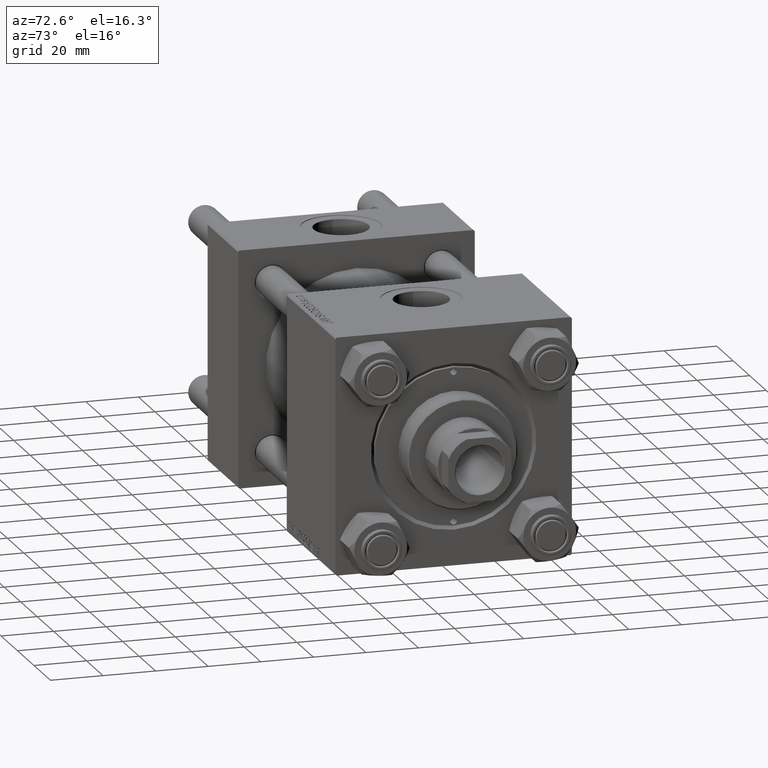
[diagram: clean part render]
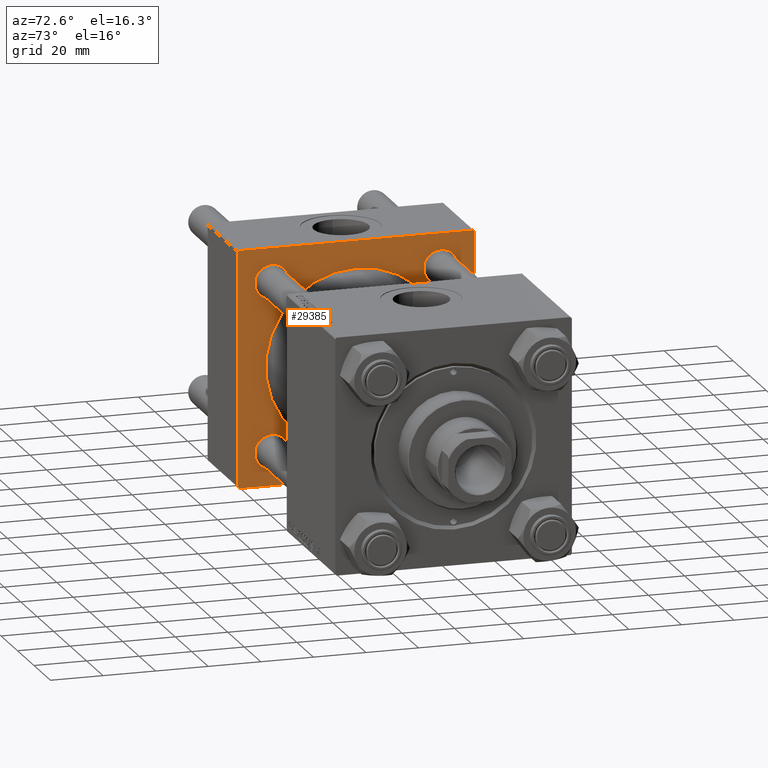
[diagram: same view with one face highlighted and labeled with its STEP entity id]
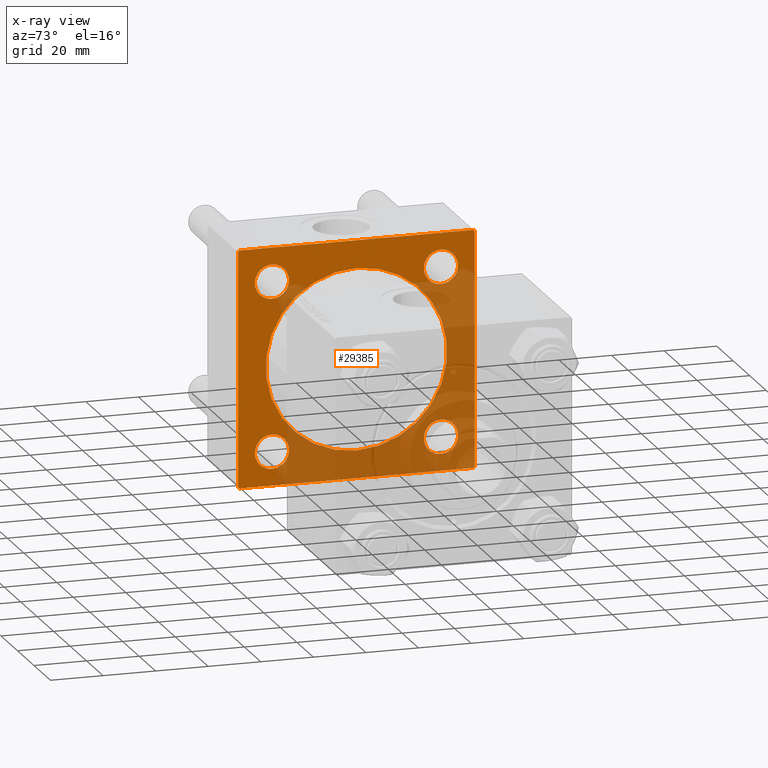
[diagram: x-ray of the same camera — body ghosted, the highlighted face saturated]
A machine part, auxiliary view. The second image highlights one B-rep face of the part: STEP entity #29385.
The next image is the same camera in x-ray: the body ghosted, the highlighted face saturated — about 47% of this face is hidden behind the body in this view.
In plain terms, the highlighted planar face has unit normal (-1, 0, 0).
Its self-contained STEP definition (entity closure, byte-faithful):
#422 = VECTOR ( 'NONE', #46878, 1000.000000000000000 ) ;
#897 = ORIENTED_EDGE ( 'NONE', *, *, #25394, .T. ) ;
#1476 = CARTESIAN_POINT ( 'NONE',  ( 37.00000000000000000, -45.00000000000000711, 44.49999999999997158 ) ) ;
#1557 = ORIENTED_EDGE ( 'NONE', *, *, #46327, .T. ) ;
#1835 = AXIS2_PLACEMENT_3D ( 'NONE', #48062, #4875, #44268 ) ;
#1970 = EDGE_CURVE ( 'NONE', #4966, #43751, #10535, .T. ) ;
#2127 = EDGE_LOOP ( 'NONE', ( #41111, #897 ) ) ;
#2216 = DIRECTION ( 'NONE',  ( -1.000000000000000000, 0.000000000000000000, -0.000000000000000000 ) ) ;
#2766 = DIRECTION ( 'NONE',  ( -1.000000000000000000, 0.000000000000000000, -0.000000000000000000 ) ) ;
#2887 = VERTEX_POINT ( 'NONE', #42155 ) ;
#3223 = CIRCLE ( 'NONE', #31436, 6.500000000000033751 ) ;
#3300 = DIRECTION ( 'NONE',  ( -0.000000000000000000, 0.000000000000000000, 1.000000000000000000 ) ) ;
#3679 = ORIENTED_EDGE ( 'NONE', *, *, #23165, .F. ) ;
#3782 = VERTEX_POINT ( 'NONE', #39985 ) ;
#3800 = FACE_BOUND ( 'NONE', #10793, .T. ) ;
#4143 = DIRECTION ( 'NONE',  ( 0.000000000000000000, 0.000000000000000000, 1.000000000000000000 ) ) ;
#4311 = LINE ( 'NONE', #19693, #8739 ) ;
#4875 = DIRECTION ( 'NONE',  ( 1.000000000000000000, -0.000000000000000000, 0.000000000000000000 ) ) ;
#4966 = VERTEX_POINT ( 'NONE', #43728 ) ;
#5247 = CARTESIAN_POINT ( 'NONE',  ( 37.00000000000000000, -32.14999999999997726, -25.64999999999997726 ) ) ;
#5587 = ORIENTED_EDGE ( 'NONE', *, *, #16647, .T. ) ;
#6254 = EDGE_LOOP ( 'NONE', ( #41435, #32287 ) ) ;
#6952 = ORIENTED_EDGE ( 'NONE', *, *, #7413, .F. ) ;
#7203 = ORIENTED_EDGE ( 'NONE', *, *, #42171, .T. ) ;
#7222 = CARTESIAN_POINT ( 'NONE',  ( 37.00000000000000000, -45.00000000000000000, -44.49999999999995737 ) ) ;
#7413 = EDGE_CURVE ( 'NONE', #31977, #35512, #9188, .T. ) ;
#7420 = CIRCLE ( 'NONE', #47779, 6.500000000000033751 ) ;
#7752 = VECTOR ( 'NONE', #29546, 1000.000000000000000 ) ;
#8088 = VECTOR ( 'NONE', #25260, 1000.000000000000114 ) ;
#8252 = CIRCLE ( 'NONE', #31673, 34.49999999999999289 ) ;
#8739 = VECTOR ( 'NONE', #35109, 1000.000000000000114 ) ;
#8982 = VECTOR ( 'NONE', #15773, 1000.000000000000000 ) ;
#9188 = LINE ( 'NONE', #19800, #8982 ) ;
#9216 = LINE ( 'NONE', #43086, #422 ) ;
#9425 = VERTEX_POINT ( 'NONE', #7222 ) ;
#9760 = CARTESIAN_POINT ( 'NONE',  ( 37.00000000000000000, -32.14999999999997726, 32.15000000000001279 ) ) ;
#10233 = AXIS2_PLACEMENT_3D ( 'NONE', #9760, #2216, #41833 ) ;
#10403 = VERTEX_POINT ( 'NONE', #5247 ) ;
#10535 = CIRCLE ( 'NONE', #33914, 6.500000000000033751 ) ;
#10793 = EDGE_LOOP ( 'NONE', ( #46102, #30142 ) ) ;
#10845 = LINE ( 'NONE', #17914, #8088 ) ;
#11005 = EDGE_CURVE ( 'NONE', #23399, #2887, #8252, .T. ) ;
#11031 = EDGE_CURVE ( 'NONE', #2887, #23399, #47834, .T. ) ;
#12097 = FACE_BOUND ( 'NONE', #44474, .T. ) ;
#12828 = VECTOR ( 'NONE', #35819, 1000.000000000000114 ) ;
#13317 = LINE ( 'NONE', #25187, #28952 ) ;
#14209 = CIRCLE ( 'NONE', #39231, 6.500000000000033751 ) ;
#14334 = DIRECTION ( 'NONE',  ( 0.000000000000000000, 0.000000000000000000, 1.000000000000000000 ) ) ;
#14699 = VECTOR ( 'NONE', #24134, 1000.000000000000000 ) ;
#14982 = ORIENTED_EDGE ( 'NONE', *, *, #35523, .T. ) ;
#15266 = VERTEX_POINT ( 'NONE', #37051 ) ;
#15773 = DIRECTION ( 'NONE',  ( 0.000000000000000000, 0.000000000000000000, -1.000000000000000000 ) ) ;
#15876 = VERTEX_POINT ( 'NONE', #27346 ) ;
#16133 = CIRCLE ( 'NONE', #44387, 6.500000000000033751 ) ;
#16485 = DIRECTION ( 'NONE',  ( -1.000000000000000000, 0.000000000000000000, -0.000000000000000000 ) ) ;
#16647 = EDGE_CURVE ( 'NONE', #23045, #9425, #9216, .T. ) ;
#17829 = DIRECTION ( 'NONE',  ( 0.000000000000000000, 0.000000000000000000, 1.000000000000000000 ) ) ;
#17914 = CARTESIAN_POINT ( 'NONE',  ( 37.00000000000000000, -44.49999999999998579, -45.00000000000000000 ) ) ;
#18800 = CARTESIAN_POINT ( 'NONE',  ( 37.00000000000000000, 32.14999999999999147, 32.15000000000000568 ) ) ;
#19419 = FACE_BOUND ( 'NONE', #6254, .T. ) ;
#19693 = CARTESIAN_POINT ( 'NONE',  ( 37.00000000000000000, 44.49999999999998579, 45.00000000000001421 ) ) ;
#19800 = CARTESIAN_POINT ( 'NONE',  ( 37.00000000000000000, 44.99999999999998579, 45.00000000000001421 ) ) ;
#21895 = CARTESIAN_POINT ( 'NONE',  ( 37.00000000000000000, 44.99999999999998579, -44.49999999999995737 ) ) ;
#22156 = DIRECTION ( 'NONE',  ( -1.000000000000000000, 0.000000000000000000, -0.000000000000000000 ) ) ;
#22484 = FACE_BOUND ( 'NONE', #2127, .T. ) ;
#22691 = VERTEX_POINT ( 'NONE', #23085 ) ;
#22822 = EDGE_CURVE ( 'NONE', #39362, #33187, #14209, .T. ) ;
#23045 = VERTEX_POINT ( 'NONE', #28296 ) ;
#23085 = CARTESIAN_POINT ( 'NONE',  ( 37.00000000000000000, -44.49999999999995737, -45.00000000000000000 ) ) ;
#23165 = EDGE_CURVE ( 'NONE', #3782, #22691, #36374, .T. ) ;
#23326 = CARTESIAN_POINT ( 'NONE',  ( 37.00000000000000000, 0.000000000000000000, 0.000000000000000000 ) ) ;
#23399 = VERTEX_POINT ( 'NONE', #27243 ) ;
#23573 = DIRECTION ( 'NONE',  ( 0.000000000000000000, 0.000000000000000000, 1.000000000000000000 ) ) ;
#24134 = DIRECTION ( 'NONE',  ( 0.000000000000000000, -1.000000000000000000, -1.541976423090495387E-16 ) ) ;
#24574 = CARTESIAN_POINT ( 'NONE',  ( 37.00000000000000000, -32.14999999999997726, -32.15000000000001279 ) ) ;
#24740 = CIRCLE ( 'NONE', #32031, 6.500000000000033751 ) ;
#25066 = DIRECTION ( 'NONE',  ( 0.000000000000000000, 0.000000000000000000, 1.000000000000000000 ) ) ;
#25187 = CARTESIAN_POINT ( 'NONE',  ( 37.00000000000000000, 44.99999999999998579, -44.49999999999998579 ) ) ;
#25260 = DIRECTION ( 'NONE',  ( 0.000000000000000000, 0.7071067811865474617, -0.7071067811865474617 ) ) ;
#25394 = EDGE_CURVE ( 'NONE', #43751, #4966, #32030, .T. ) ;
#25501 = EDGE_CURVE ( 'NONE', #33187, #39362, #27195, .T. ) ;
#25642 = DIRECTION ( 'NONE',  ( 0.000000000000000000, 0.000000000000000000, 1.000000000000000000 ) ) ;
#25693 = EDGE_LOOP ( 'NONE', ( #3679, #14982, #6952, #36230, #1557, #37469, #5587, #7203 ) ) ;
#26833 = CARTESIAN_POINT ( 'NONE',  ( 37.00000000000000000, -44.49999999999995737, 45.00000000000000000 ) ) ;
#27195 = CIRCLE ( 'NONE', #31919, 6.500000000000033751 ) ;
#27243 = CARTESIAN_POINT ( 'NONE',  ( 37.00000000000000000, 0.000000000000000000, 34.49999999999999289 ) ) ;
#27346 = CARTESIAN_POINT ( 'NONE',  ( 37.00000000000000000, 32.14999999999999147, 38.65000000000004121 ) ) ;
#27549 = CARTESIAN_POINT ( 'NONE',  ( 37.00000000000000000, 32.14999999999999147, -25.64999999999997016 ) ) ;
#28296 = CARTESIAN_POINT ( 'NONE',  ( 37.00000000000000000, -45.00000000000000711, 44.49999999999997158 ) ) ;
#28927 = LINE ( 'NONE', #40540, #14699 ) ;
#28952 = VECTOR ( 'NONE', #37054, 1000.000000000000114 ) ;
#29385 = ADVANCED_FACE ( 'NONE', ( #19419, #12097, #22484, #3800, #49518, #49767 ), #37888, .F. ) ;
#29546 = DIRECTION ( 'NONE',  ( 0.000000000000000000, -1.000000000000000000, -1.541976423090495633E-16 ) ) ;
#29563 = EDGE_CURVE ( 'NONE', #15876, #15266, #24740, .T. ) ;
#29968 = DIRECTION ( 'NONE',  ( -1.000000000000000000, 0.000000000000000000, -0.000000000000000000 ) ) ;
#30142 = ORIENTED_EDGE ( 'NONE', *, *, #29563, .T. ) ;
#31390 = CARTESIAN_POINT ( 'NONE',  ( 37.00000000000000000, 32.14999999999999147, -38.65000000000004121 ) ) ;
#31436 = AXIS2_PLACEMENT_3D ( 'NONE', #45901, #22156, #42105 ) ;
#31673 = AXIS2_PLACEMENT_3D ( 'NONE', #23326, #38733, #4143 ) ;
#31720 = VERTEX_POINT ( 'NONE', #26833 ) ;
#31919 = AXIS2_PLACEMENT_3D ( 'NONE', #37049, #29968, #17829 ) ;
#31941 = EDGE_LOOP ( 'NONE', ( #46035, #39108 ) ) ;
#31977 = VERTEX_POINT ( 'NONE', #32375 ) ;
#32030 = CIRCLE ( 'NONE', #10233, 6.500000000000033751 ) ;
#32031 = AXIS2_PLACEMENT_3D ( 'NONE', #40622, #48210, #14334 ) ;
#32287 = ORIENTED_EDGE ( 'NONE', *, *, #42785, .T. ) ;
#32375 = CARTESIAN_POINT ( 'NONE',  ( 37.00000000000000000, 44.99999999999998579, 44.50000000000001421 ) ) ;
#32530 = LINE ( 'NONE', #1476, #12828 ) ;
#32591 = CARTESIAN_POINT ( 'NONE',  ( 37.00000000000000000, 44.99999999999998579, -44.99999999999998579 ) ) ;
#32840 = CARTESIAN_POINT ( 'NONE',  ( 37.00000000000000000, 44.49999999999998579, 45.00000000000001421 ) ) ;
#33187 = VERTEX_POINT ( 'NONE', #31390 ) ;
#33323 = CARTESIAN_POINT ( 'NONE',  ( 37.00000000000000000, -32.14999999999997726, 32.15000000000001279 ) ) ;
#33914 = AXIS2_PLACEMENT_3D ( 'NONE', #33323, #2766, #40638 ) ;
#35109 = DIRECTION ( 'NONE',  ( 0.000000000000000000, -0.7071067811865474617, 0.7071067811865474617 ) ) ;
#35512 = VERTEX_POINT ( 'NONE', #21895 ) ;
#35523 = EDGE_CURVE ( 'NONE', #3782, #35512, #13317, .T. ) ;
#35819 = DIRECTION ( 'NONE',  ( -0.000000000000000000, -0.7071067811865425767, -0.7071067811865524577 ) ) ;
#36230 = ORIENTED_EDGE ( 'NONE', *, *, #37933, .T. ) ;
#36374 = LINE ( 'NONE', #32591, #7752 ) ;
#36439 = CARTESIAN_POINT ( 'NONE',  ( 37.00000000000000000, 32.14999999999999147, -32.15000000000000568 ) ) ;
#37049 = CARTESIAN_POINT ( 'NONE',  ( 37.00000000000000000, 32.14999999999999147, -32.15000000000000568 ) ) ;
#37051 = CARTESIAN_POINT ( 'NONE',  ( 37.00000000000000000, 32.14999999999999147, 25.64999999999997016 ) ) ;
#37054 = DIRECTION ( 'NONE',  ( -0.000000000000000000, 0.7071067811865474617, 0.7071067811865474617 ) ) ;
#37469 = ORIENTED_EDGE ( 'NONE', *, *, #38831, .T. ) ;
#37812 = CARTESIAN_POINT ( 'NONE',  ( 37.00000000000000000, -32.14999999999997726, -38.65000000000004832 ) ) ;
#37888 = PLANE ( 'NONE',  #40059 ) ;
#37933 = EDGE_CURVE ( 'NONE', #31977, #39497, #4311, .T. ) ;
#38733 = DIRECTION ( 'NONE',  ( 1.000000000000000000, -0.000000000000000000, 0.000000000000000000 ) ) ;
#38831 = EDGE_CURVE ( 'NONE', #31720, #23045, #32530, .T. ) ;
#39108 = ORIENTED_EDGE ( 'NONE', *, *, #11031, .F. ) ;
#39231 = AXIS2_PLACEMENT_3D ( 'NONE', #36439, #49062, #25066 ) ;
#39362 = VERTEX_POINT ( 'NONE', #27549 ) ;
#39497 = VERTEX_POINT ( 'NONE', #32840 ) ;
#39985 = CARTESIAN_POINT ( 'NONE',  ( 37.00000000000000000, 44.49999999999998579, -44.99999999999998579 ) ) ;
#40059 = AXIS2_PLACEMENT_3D ( 'NONE', #45976, #45733, #3300 ) ;
#40540 = CARTESIAN_POINT ( 'NONE',  ( 37.00000000000000000, 44.99999999999998579, 45.00000000000001421 ) ) ;
#40622 = CARTESIAN_POINT ( 'NONE',  ( 37.00000000000000000, 32.14999999999999147, 32.15000000000000568 ) ) ;
#40638 = DIRECTION ( 'NONE',  ( 0.000000000000000000, 0.000000000000000000, 1.000000000000000000 ) ) ;
#41111 = ORIENTED_EDGE ( 'NONE', *, *, #1970, .T. ) ;
#41435 = ORIENTED_EDGE ( 'NONE', *, *, #41635, .T. ) ;
#41635 = EDGE_CURVE ( 'NONE', #46900, #10403, #3223, .T. ) ;
#41797 = DIRECTION ( 'NONE',  ( -1.000000000000000000, 0.000000000000000000, -0.000000000000000000 ) ) ;
#41833 = DIRECTION ( 'NONE',  ( 0.000000000000000000, 0.000000000000000000, 1.000000000000000000 ) ) ;
#42105 = DIRECTION ( 'NONE',  ( 0.000000000000000000, 0.000000000000000000, 1.000000000000000000 ) ) ;
#42155 = CARTESIAN_POINT ( 'NONE',  ( 37.00000000000000000, 4.225031457058367344E-15, -34.49999999999999289 ) ) ;
#42171 = EDGE_CURVE ( 'NONE', #9425, #22691, #10845, .T. ) ;
#42611 = ORIENTED_EDGE ( 'NONE', *, *, #25501, .T. ) ;
#42785 = EDGE_CURVE ( 'NONE', #10403, #46900, #16133, .T. ) ;
#43086 = CARTESIAN_POINT ( 'NONE',  ( 37.00000000000000000, -45.00000000000000711, 45.00000000000000000 ) ) ;
#43728 = CARTESIAN_POINT ( 'NONE',  ( 37.00000000000000000, -32.14999999999997726, 25.64999999999997726 ) ) ;
#43751 = VERTEX_POINT ( 'NONE', #47148 ) ;
#44268 = DIRECTION ( 'NONE',  ( 0.000000000000000000, 0.000000000000000000, 1.000000000000000000 ) ) ;
#44387 = AXIS2_PLACEMENT_3D ( 'NONE', #24574, #16485, #23573 ) ;
#44474 = EDGE_LOOP ( 'NONE', ( #42611, #45402 ) ) ;
#45402 = ORIENTED_EDGE ( 'NONE', *, *, #22822, .T. ) ;
#45733 = DIRECTION ( 'NONE',  ( -1.000000000000000000, 0.000000000000000000, -0.000000000000000000 ) ) ;
#45901 = CARTESIAN_POINT ( 'NONE',  ( 37.00000000000000000, -32.14999999999997726, -32.15000000000001279 ) ) ;
#45976 = CARTESIAN_POINT ( 'NONE',  ( 37.00000000000000000, 0.000000000000000000, 0.000000000000000000 ) ) ;
#46035 = ORIENTED_EDGE ( 'NONE', *, *, #11005, .F. ) ;
#46102 = ORIENTED_EDGE ( 'NONE', *, *, #47171, .T. ) ;
#46327 = EDGE_CURVE ( 'NONE', #39497, #31720, #28927, .T. ) ;
#46878 = DIRECTION ( 'NONE',  ( 0.000000000000000000, 7.709882115452476934E-17, -1.000000000000000000 ) ) ;
#46900 = VERTEX_POINT ( 'NONE', #37812 ) ;
#47148 = CARTESIAN_POINT ( 'NONE',  ( 37.00000000000000000, -32.14999999999997726, 38.65000000000004832 ) ) ;
#47171 = EDGE_CURVE ( 'NONE', #15266, #15876, #7420, .T. ) ;
#47779 = AXIS2_PLACEMENT_3D ( 'NONE', #18800, #41797, #25642 ) ;
#47834 = CIRCLE ( 'NONE', #1835, 34.49999999999999289 ) ;
#48062 = CARTESIAN_POINT ( 'NONE',  ( 37.00000000000000000, 0.000000000000000000, 0.000000000000000000 ) ) ;
#48210 = DIRECTION ( 'NONE',  ( -1.000000000000000000, 0.000000000000000000, -0.000000000000000000 ) ) ;
#49062 = DIRECTION ( 'NONE',  ( -1.000000000000000000, 0.000000000000000000, -0.000000000000000000 ) ) ;
#49518 = FACE_BOUND ( 'NONE', #31941, .T. ) ;
#49767 = FACE_OUTER_BOUND ( 'NONE', #25693, .T. ) ;